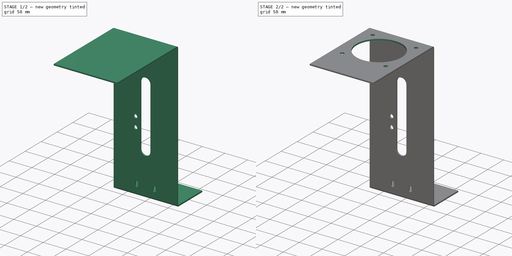
[diagram: build sequence overview — one tinted view per stage of 2, left to right]
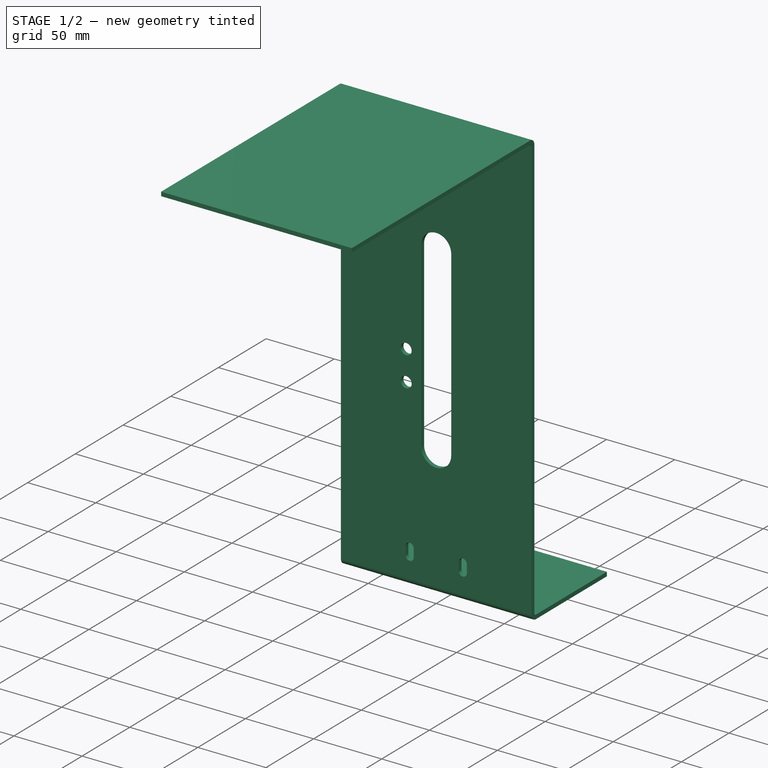
[diagram: stage 1 of 2 — iso view after this stage's code; geometry added in this stage tinted green]
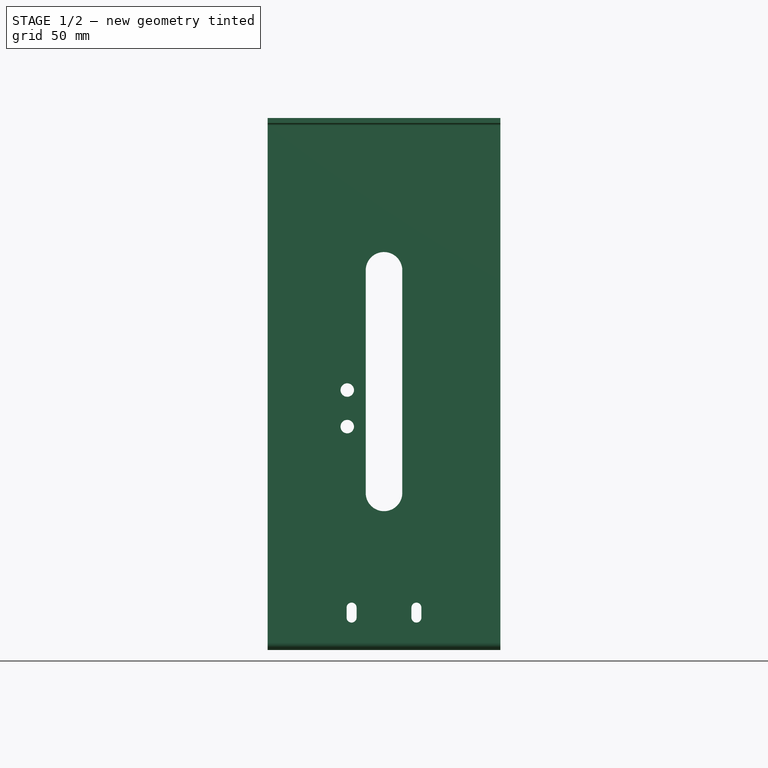
[diagram: stage 1 of 2 — front view after this stage's code; geometry added in this stage tinted green]
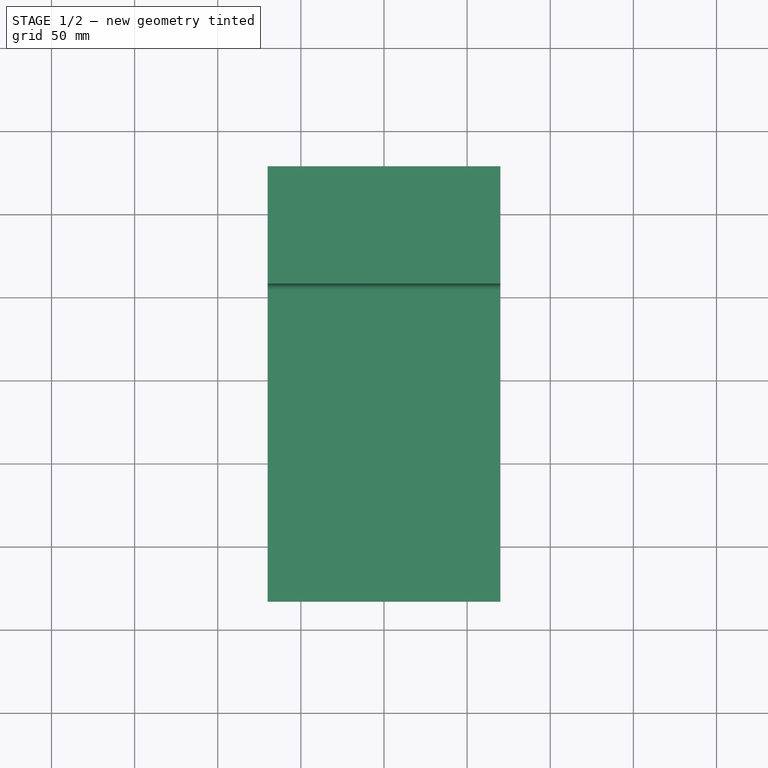
[diagram: stage 1 of 2 — top view after this stage's code; geometry added in this stage tinted green]
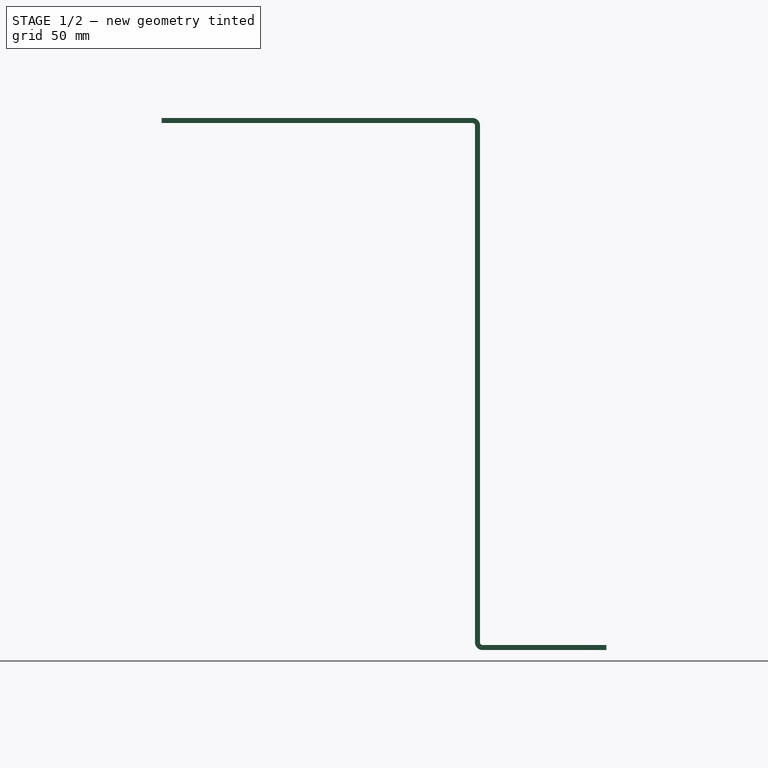
[diagram: stage 1 of 2 — right view after this stage's code; geometry added in this stage tinted green]
FCSTD DOCUMENT  (FreeCAD 0.20R29177 (Git))
Label: Стойка
License: All rights reserved
LicenseURL: http://en.wikipedia.org/wiki/All_rights_reserved
objects: Sketcher::SketchObject×6, PartDesign::Pocket×3, Spreadsheet::Sheet×1, PartDesign::Pad×1, Part::Feature×1, PartDesign::SubShapeBinder×1, PartDesign::Body×1
note: 17 computed .brp shape members not serialized (recipe doc carries the construction recipe); baked Part::Feature solids carry a one-line shape summary decoded from their .brp

FEATURE [Sketcher::SketchObject] Sketch
  FullyConstrained = true
  MapMode = 5
  Placement = pos=(0,0,0) rot=(0.57735,0.57735,0.57735;2.0944rad)
  Support = -> [YZ_Plane]
  expr: Constraints[13] = Spreadsheet.thickness
  sketch-geometry (16):
    g0: LineSegment StartX=-188.5 StartY=317 StartZ=0 EndX=-1.5 EndY=317 EndZ=0
    g1: LineSegment StartX=0 StartY=315.5 StartZ=0 EndX=0 EndY=4.5 EndZ=0
    g2: LineSegment StartX=4.5 StartY=0 StartZ=0 EndX=79 EndY=0 EndZ=0
    g3: LineSegment StartX=-188.5 StartY=317 StartZ=0 EndX=-188.5 EndY=320 EndZ=0
    g4: LineSegment StartX=-188.5 StartY=320 StartZ=0 EndX=-1.5 EndY=320 EndZ=0
    g5: LineSegment StartX=3 StartY=315.5 StartZ=0 EndX=3 EndY=4.5 EndZ=0
    g6: LineSegment StartX=4.5 StartY=3 StartZ=0 EndX=79 EndY=3 EndZ=0
    g7: LineSegment StartX=79 StartY=3 StartZ=0 EndX=79 EndY=0 EndZ=0
    g8: ArcOfCircle CenterX=4.5 CenterY=4.5 CenterZ=0 NormalX=0 NormalY=0 NormalZ=1 AngleXU=0 Radius=1.5 StartAngle=3.14159 EndAngle=4.71239
    g9: GeomPoint X=3 Y=3 Z=0
    g10: ArcOfCircle CenterX=4.5 CenterY=4.5 CenterZ=0 NormalX=0 NormalY=0 NormalZ=1 AngleXU=0 Radius=4.5 StartAngle=3.14159 EndAngle=4.71239
    g11: GeomPoint X=0 Y=0 Z=0
    g12: ArcOfCircle CenterX=-1.5 CenterY=315.5 CenterZ=0 NormalX=0 NormalY=0 NormalZ=1 AngleXU=0 Radius=1.5 StartAngle=5.6e-15 EndAngle=1.5708
    g13: GeomPoint X=0 Y=317 Z=0
    g14: ArcOfCircle CenterX=-1.5 CenterY=315.5 CenterZ=0 NormalX=0 NormalY=0 NormalZ=1 AngleXU=0 Radius=4.5 StartAngle=3.1e-15 EndAngle=1.5708
    g15: GeomPoint X=3 Y=320 Z=0
  constraints (37):
    c: PointOnObject(g13,g-2)
    c: Coincident(g11,g-1)
    c: PointOnObject(g2,g-1)
    c: Horizontal(g0)
    c: Coincident(g3,g0)
    c: Vertical(g3)
    c: Coincident(g4,g3)
    c: Horizontal(g4)
    c: Vertical(g5)
    c: Horizontal(g6)
    c: Coincident(g7,g6)
    c: Coincident(g7,g2)
    c: Vertical(g7)
    c: Distance(g7) = 3
    c: PointOnObject(g9,g6)
    c: PointOnObject(g9,g5)
    c: Tangent(g6,g8) = -1.5708
    c: Tangent(g5,g8) = -1.5708
    c: PointOnObject(g11,g2)
    c: PointOnObject(g11,g1)
    c: Tangent(g2,g10) = -1.5708
    c: Tangent(g1,g10) = -1.5708
    c: PointOnObject(g13,g0)
    c: PointOnObject(g13,g1)
    c: Tangent(g0,g12) = 1.5708
    c: Tangent(g1,g12) = 1.5708
    c: PointOnObject(g15,g4)
    c: PointOnObject(g15,g5)
    c: Tangent(g4,g14) = 1.5708
    c: Tangent(g5,g14) = 1.5708
    c: Equal(g8,g12)
    c: Coincident(g14,g12)
    c: Coincident(g10,g8)
    c: Diameter(g8) = 3
    c: DistanceY(g11,g15) = 320
    c: DistanceX(g11,g2) = 79
    c: Distance(g4) = 187
FEATURE [Spreadsheet::Sheet] Spreadsheet
  cells = B2(thickness)=3
FEATURE [PartDesign::Pad] Pad
  Direction = (1,-2e-16,3e-16)
  Length = 140
  Length2 = 140
  Midplane = true
  Placement = pos=(0,0,0) rot=(0.57735,0.57735,0.57735;2.0944rad)
  Profile = -> Sketch
  ReferenceAxis = -> Sketch [N_Axis]
  Type = 0
FEATURE [Sketcher::SketchObject] Sketch001
  AttachmentOffset = pos=(0,40,0) rot=(0,0,1;0rad)
  FullyConstrained = true
  MapMode = 5
  Placement = pos=(0,40,0) rot=(0,0,1;0rad)
  Support = -> [XY_Plane]
  sketch-geometry (18):
    g0: ArcOfCircle CenterX=19.5 CenterY=19.5 CenterZ=0 NormalX=0 NormalY=0 NormalZ=1 AngleXU=0 Radius=3 StartAngle=3.14159 EndAngle=6.28319
    g1: ArcOfCircle CenterX=19.5 CenterY=25.5 CenterZ=0 NormalX=0 NormalY=0 NormalZ=1 AngleXU=0 Radius=3 StartAngle=-2.7e-15 EndAngle=3.14159
    g2: LineSegment StartX=22.5 StartY=19.5 StartZ=0 EndX=22.5 EndY=25.5 EndZ=0
    g3: LineSegment StartX=16.5 StartY=25.5 StartZ=0 EndX=16.5 EndY=19.5 EndZ=0
    g4: ArcOfCircle CenterX=-19.5 CenterY=-19.5 CenterZ=0 NormalX=0 NormalY=0 NormalZ=1 AngleXU=0 Radius=3 StartAngle=4e-16 EndAngle=3.14159
    g5: ArcOfCircle CenterX=-19.5 CenterY=-25.5 CenterZ=0 NormalX=0 NormalY=0 NormalZ=1 AngleXU=0 Radius=3 StartAngle=3.14159 EndAngle=6.28319
    g6: LineSegment StartX=-22.5 StartY=-19.5 StartZ=0 EndX=-22.5 EndY=-25.5 EndZ=0
    g7: LineSegment StartX=-16.5 StartY=-25.5 StartZ=0 EndX=-16.5 EndY=-19.5 EndZ=0
    g8: ArcOfCircle CenterX=-19.5 CenterY=25.5 CenterZ=0 NormalX=0 NormalY=0 NormalZ=1 AngleXU=0 Radius=3 StartAngle=0 EndAngle=3.14159
    g9: ArcOfCircle CenterX=-19.5 CenterY=19.5 CenterZ=0 NormalX=0 NormalY=0 NormalZ=1 AngleXU=0 Radius=3 StartAngle=3.14159 EndAngle=6.28319
    g10: LineSegment StartX=-22.5 StartY=25.5 StartZ=0 EndX=-22.5 EndY=19.5 EndZ=0
    g11: LineSegment StartX=-16.5 StartY=19.5 StartZ=0 EndX=-16.5 EndY=25.5 EndZ=0
    g12: ArcOfCircle CenterX=19.5 CenterY=-19.5 CenterZ=0 NormalX=0 NormalY=0 NormalZ=1 AngleXU=0 Radius=3 StartAngle=2e-16 EndAngle=3.14159
    g13: ArcOfCircle CenterX=19.5 CenterY=-25.5 CenterZ=0 NormalX=0 NormalY=0 NormalZ=1 AngleXU=0 Radius=3 StartAngle=3.14159 EndAngle=6.28319
    g14: LineSegment StartX=16.5 StartY=-19.5 StartZ=0 EndX=16.5 EndY=-25.5 EndZ=0
    g15: LineSegment StartX=22.5 StartY=-25.5 StartZ=0 EndX=22.5 EndY=-19.5 EndZ=0
    g16: LineSegment StartX=19.5 StartY=25.5 StartZ=0 EndX=19.5 EndY=22.5 EndZ=0
    g17: LineSegment StartX=19.5 StartY=22.5 StartZ=0 EndX=19.5 EndY=19.5 EndZ=0
  constraints (39):
    c: Tangent(g0,g2) = -1.5708
    c: Tangent(g2,g1) = -1.5708
    c: Tangent(g1,g3) = -1.5708
    c: Tangent(g3,g0) = -1.5708
    c: Equal(g0,g1)
    c: Distance(g0,g1) = 6
    c: Diameter(g0) = 6
    c: DistanceX(g1) = 19.5
    c: Tangent(g4,g6) = -1.5708
    c: Tangent(g6,g5) = -1.5708
    c: Tangent(g5,g7) = -1.5708
    c: Tangent(g7,g4) = -1.5708
    c: Equal(g4,g5)
    c: Vertical(g6)
    c: Tangent(g8,g10) = -1.5708
    c: Tangent(g10,g9) = -1.5708
    c: Tangent(g9,g11) = -1.5708
    c: Tangent(g11,g8) = -1.5708
    c: Equal(g8,g9)
    c: Tangent(g12,g14) = -1.5708
    c: Tangent(g14,g13) = -1.5708
    c: Tangent(g13,g15) = -1.5708
    c: Tangent(g15,g12) = -1.5708
    c: Equal(g12,g13)
    c: Symmetric(g1,g5,g-1)
    c: Symmetric(g0,g4,g-1)
    c: Symmetric(g1,g13,g-1)
    c: Symmetric(g1,g8,g-2)
    c: Symmetric(g0,g12,g-1)
    c: Symmetric(g0,g9,g-2)
    c: Equal(g12,g4)
    c: Equal(g4,g8)
    c: Equal(g8,g1)
    c: Coincident(g16,g1)
    c: Vertical(g16)
    c: Coincident(g17,g16)
    c: Coincident(g17,g0)
    c: Equal(g17,g16)
    c: DistanceY(g16) = 22.5
FEATURE [Part::Feature] Part__Feature  label="Shapes"
  shape: bbox 140 x 609.8 x 5 mm, 78 faces (baked)
FEATURE [Sketcher::SketchObject] Sketch002
  AttachmentOffset = pos=(0,-70,0) rot=(0,0,1;0rad)
  FullyConstrained = true
  MapMode = 5
  Placement = pos=(0,-70,0) rot=(0,0,1;0rad)
  Support = -> [XY_Plane]
  sketch-geometry (7):
    g0: Circle CenterX=0 CenterY=0 CenterZ=0 NormalX=0 NormalY=0 NormalZ=1 AngleXU=0 Radius=50
    g1: Circle CenterX=47.73 CenterY=47.73 CenterZ=0 NormalX=0 NormalY=0 NormalZ=1 AngleXU=0 Radius=4
    g2: LineSegment StartX=47.73 StartY=47.73 StartZ=0 EndX=0 EndY=47.73 EndZ=0
    g3: LineSegment StartX=47.73 StartY=47.73 StartZ=0 EndX=47.73 EndY=0 EndZ=0
    g4: Circle CenterX=-47.73 CenterY=-47.73 CenterZ=0 NormalX=0 NormalY=0 NormalZ=1 AngleXU=0 Radius=4
    g5: Circle CenterX=-47.73 CenterY=47.73 CenterZ=0 NormalX=0 NormalY=0 NormalZ=1 AngleXU=0 Radius=4
    g6: Circle CenterX=47.73 CenterY=-47.73 CenterZ=0 NormalX=0 NormalY=0 NormalZ=1 AngleXU=0 Radius=4
  constraints (17):
    c: Coincident(g0,g-1)
    c: Diameter(g0) = 100
    c: Diameter(g1) = 8
    c: DistanceX(g1) = 47.73
    c: Coincident(g2,g1)
    c: PointOnObject(g2,g-2)
    c: Horizontal(g2)
    c: Coincident(g3,g1)
    c: PointOnObject(g3,g-1)
    c: Vertical(g3)
    c: Equal(g3,g2)
    c: Symmetric(g1,g6,g-1)
    c: Symmetric(g1,g5,g-2)
    c: Symmetric(g1,g4,g0)
    c: Equal(g4,g6)
    c: Equal(g6,g5)
    c: Equal(g5,g1)
FEATURE [Sketcher::SketchObject] Sketch003
  FullyConstrained = true
  MapMode = 5
  Support = -> [XY_Plane]
FEATURE [PartDesign::SubShapeBinder] Binder
  BindCopyOnChange = 0
  BindMode = 0
  ClaimChildren = false
  Context = -> Body [Binder.]
  Fuse = false
  MakeFace = true
  OffsetFill = false
  OffsetIntersection = false
  OffsetJoinType = 0
  OffsetOpenResult = false
  PartialLoad = false
  Relative = true
  Support = -> [Part__Feature[Face2]]
  _Version = 2
FEATURE [Sketcher::SketchObject] Sketch004
  AttachmentOffset = pos=(0,0,0) rot=(1,0,0;1.5708rad)
  FullyConstrained = true
  MapMode = 5
  Placement = pos=(0,0,0) rot=(1,0,0;1.5708rad)
  Support = -> [XY_Plane]
  sketch-geometry (24):
    g0: ArcOfCircle CenterX=19.5 CenterY=19.5 CenterZ=0 NormalX=0 NormalY=0 NormalZ=1 AngleXU=0 Radius=3 StartAngle=3.14159 EndAngle=6.28319
    g1: ArcOfCircle CenterX=19.5 CenterY=25.5 CenterZ=0 NormalX=0 NormalY=0 NormalZ=1 AngleXU=0 Radius=3 StartAngle=3e-16 EndAngle=3.14159
    g2: LineSegment StartX=22.5 StartY=19.5 StartZ=0 EndX=22.5 EndY=25.5 EndZ=0
    g3: LineSegment StartX=16.5 StartY=25.5 StartZ=0 EndX=16.5 EndY=19.5 EndZ=0
    g4: ArcOfCircle CenterX=-19.5 CenterY=-19.5 CenterZ=0 NormalX=0 NormalY=0 NormalZ=1 AngleXU=0 Radius=3 StartAngle=0 EndAngle=3.14159
    g5: ArcOfCircle CenterX=-19.5 CenterY=-25.5 CenterZ=0 NormalX=0 NormalY=0 NormalZ=1 AngleXU=0 Radius=3 StartAngle=3.14159 EndAngle=6.28319
    g6: LineSegment StartX=-22.5 StartY=-19.5 StartZ=0 EndX=-22.5 EndY=-25.5 EndZ=0
    g7: LineSegment StartX=-16.5 StartY=-25.5 StartZ=0 EndX=-16.5 EndY=-19.5 EndZ=0
    g8: ArcOfCircle CenterX=-19.5 CenterY=25.5 CenterZ=0 NormalX=0 NormalY=0 NormalZ=1 AngleXU=0 Radius=3 StartAngle=3e-16 EndAngle=3.14159
    g9: ArcOfCircle CenterX=-19.5 CenterY=19.5 CenterZ=0 NormalX=0 NormalY=0 NormalZ=1 AngleXU=0 Radius=3 StartAngle=3.14159 EndAngle=6.28319
    g10: LineSegment StartX=-22.5 StartY=25.5 StartZ=0 EndX=-22.5 EndY=19.5 EndZ=0
    g11: LineSegment StartX=-16.5 StartY=19.5 StartZ=0 EndX=-16.5 EndY=25.5 EndZ=0
    g12: ArcOfCircle CenterX=19.5 CenterY=-19.5 CenterZ=0 NormalX=0 NormalY=0 NormalZ=1 AngleXU=0 Radius=3 StartAngle=0 EndAngle=3.14159
    g13: ArcOfCircle CenterX=19.5 CenterY=-25.5 CenterZ=0 NormalX=0 NormalY=0 NormalZ=1 AngleXU=0 Radius=3 StartAngle=3.14159 EndAngle=6.28319
    g14: LineSegment StartX=16.5 StartY=-19.5 StartZ=0 EndX=16.5 EndY=-25.5 EndZ=0
    g15: LineSegment StartX=22.5 StartY=-25.5 StartZ=0 EndX=22.5 EndY=-19.5 EndZ=0
    g16: LineSegment StartX=19.5 StartY=25.5 StartZ=0 EndX=19.5 EndY=22.5 EndZ=0
    g17: LineSegment StartX=19.5 StartY=22.5 StartZ=0 EndX=19.5 EndY=19.5 EndZ=0
    g18: ArcOfCircle CenterX=5.2257e-12 CenterY=228.37 CenterZ=0 NormalX=0 NormalY=0 NormalZ=1 AngleXU=0 Radius=11 StartAngle=-1.8e-15 EndAngle=3.14159
    g19: ArcOfCircle CenterX=4.9488e-12 CenterY=94.5 CenterZ=0 NormalX=0 NormalY=0 NormalZ=1 AngleXU=0 Radius=11 StartAngle=3.14159 EndAngle=6.28319
    g20: Circle CenterX=-22.1 CenterY=156.37 CenterZ=0 NormalX=0 NormalY=0 NormalZ=1 AngleXU=0 Radius=4.05
    g21: Circle CenterX=-22.1 CenterY=134.37 CenterZ=0 NormalX=0 NormalY=0 NormalZ=1 AngleXU=0 Radius=4.05
    g22: LineSegment StartX=-11 StartY=94.5 StartZ=0 EndX=-11 EndY=228.37 EndZ=0
    g23: LineSegment StartX=11 StartY=228.37 StartZ=0 EndX=11 EndY=94.5 EndZ=0
  constraints (55):
    c: Tangent(g0,g2) = -1.5708
    c: Tangent(g2,g1) = -1.5708
    c: Tangent(g1,g3) = -1.5708
    c: Tangent(g3,g0) = -1.5708
    c: Equal(g0,g1)
    c: Distance(g0,g1) = 6
    c: Diameter(g0) = 6
    c: DistanceX(g1) = 19.5
    c: Tangent(g4,g6) = -1.5708
    c: Tangent(g6,g5) = -1.5708
    c: Tangent(g5,g7) = -1.5708
    c: Tangent(g7,g4) = -1.5708
    c: Equal(g4,g5)
    c: Vertical(g6)
    c: Tangent(g8,g10) = -1.5708
    c: Tangent(g10,g9) = -1.5708
    c: Tangent(g9,g11) = -1.5708
    c: Tangent(g11,g8) = -1.5708
    c: Equal(g8,g9)
    c: Tangent(g12,g14) = -1.5708
    c: Tangent(g14,g13) = -1.5708
    c: Tangent(g13,g15) = -1.5708
    c: Tangent(g15,g12) = -1.5708
    c: Equal(g12,g13)
    c: Symmetric(g1,g5,g-1)
    c: Symmetric(g0,g4,g-1)
    c: Symmetric(g1,g13,g-1)
    c: Symmetric(g1,g8,g-2)
    c: Symmetric(g0,g12,g-1)
    c: Symmetric(g0,g9,g-2)
    c: Equal(g12,g4)
    c: Equal(g4,g8)
    c: Equal(g8,g1)
    c: Coincident(g16,g1)
    c: Vertical(g16)
    c: Coincident(g17,g16)
    c: Coincident(g17,g0)
    c: Equal(g17,g16)
    c: DistanceY(g16) = 22.5
    c: DistanceY(g21) = 134.37
    c: DistanceY(g20) = 156.37
    c: DistanceY(g19) = 94.5
    c: DistanceY(g18) = 228.37
    c: Diameter(g19) = 22
    c: Diameter(g21) = 8.1
    c: Equal(g19,g18)
    c: Equal(g21,g20)
    c: Vertical(g22)
    c: Tangent(g23,g19) = 1.5708
    c: Tangent(g22,g19) = 1.5708
    c: Tangent(g23,g18) = 1.5708
    c: Tangent(g22,g18) = 1.5708
    c: PointOnObject(g18,g-2)
    c: DistanceX(g20) = -22.1
    c: Vertical(g21,g20)
FEATURE [Sketcher::SketchObject] Sketch005
  ExternalGeometry = -> [Binder]
  FullyConstrained = true
  MapMode = 5
  Support = -> [XY_Plane]
  sketch-geometry (2):
    g0: LineSegment StartX=-19.5 StartY=-407.813 StartZ=0 EndX=0 EndY=-427.313 EndZ=0
    g1: LineSegment StartX=-19.5 StartY=-446.813 StartZ=0 EndX=0 EndY=-427.313 EndZ=0
  constraints (6):
    c: Coincident(g0,g-5)
    c: PointOnObject(g0,g-2)
    c: Coincident(g1,g-4)
    c: Coincident(g1,g0)
    c: Equal(g1,g0)
    c: DistanceY(g0,g-1) = 427.313  'offset'
FEATURE [PartDesign::Pocket] Pocket
  BaseFeature = -> Pad
  Direction = (0,1,-2e-16)
  Length = 5
  Length2 = 5
  Placement = pos=(0,0,0) rot=(0.57735,0.57735,0.57735;2.0944rad)
  Profile = -> Sketch004
  ReferenceAxis = -> Sketch004 [N_Axis]
  Type = 1
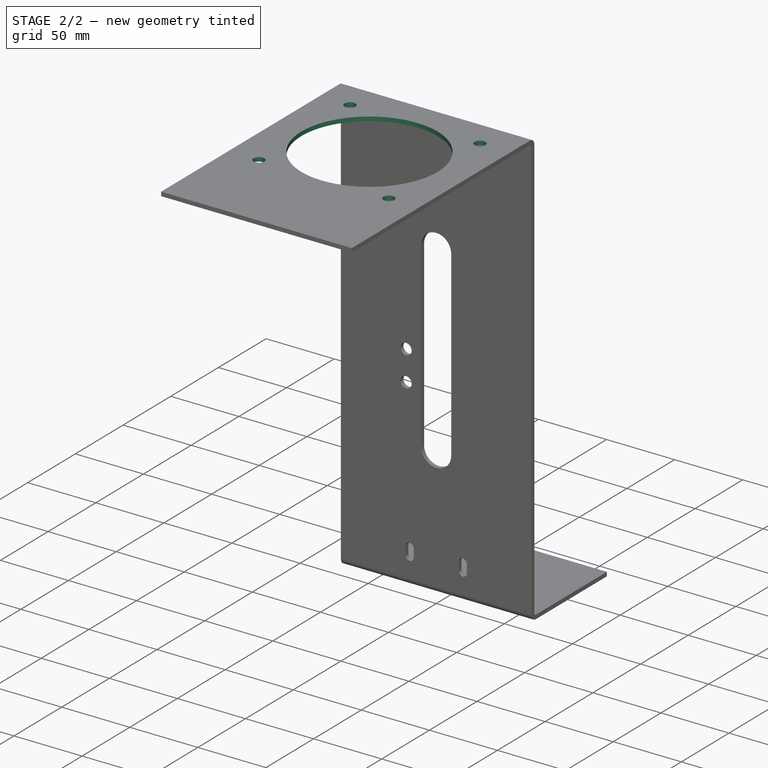
[diagram: stage 2 of 2 — iso view after this stage's code; geometry added in this stage tinted green]
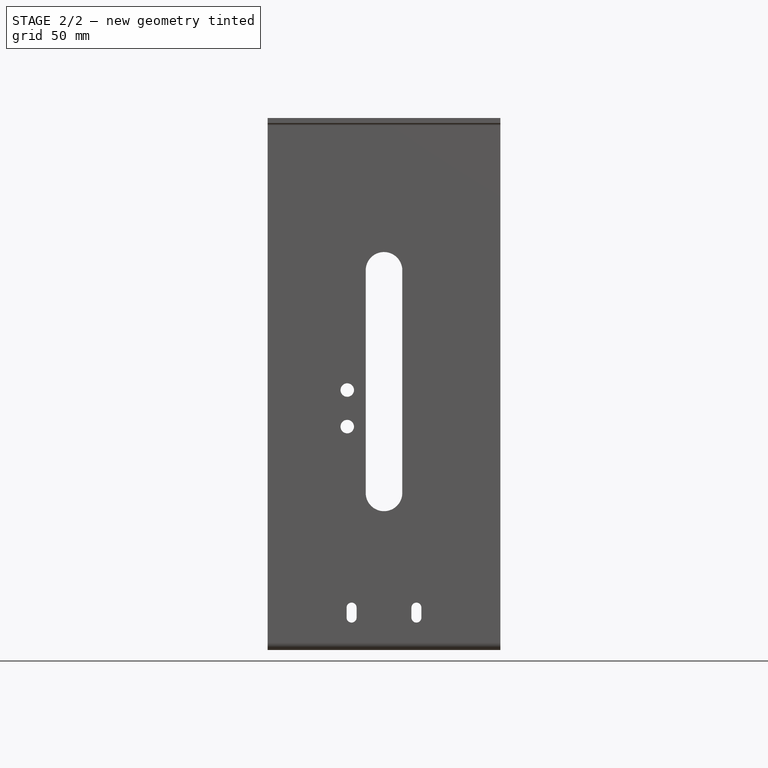
[diagram: stage 2 of 2 — front view after this stage's code; geometry added in this stage tinted green]
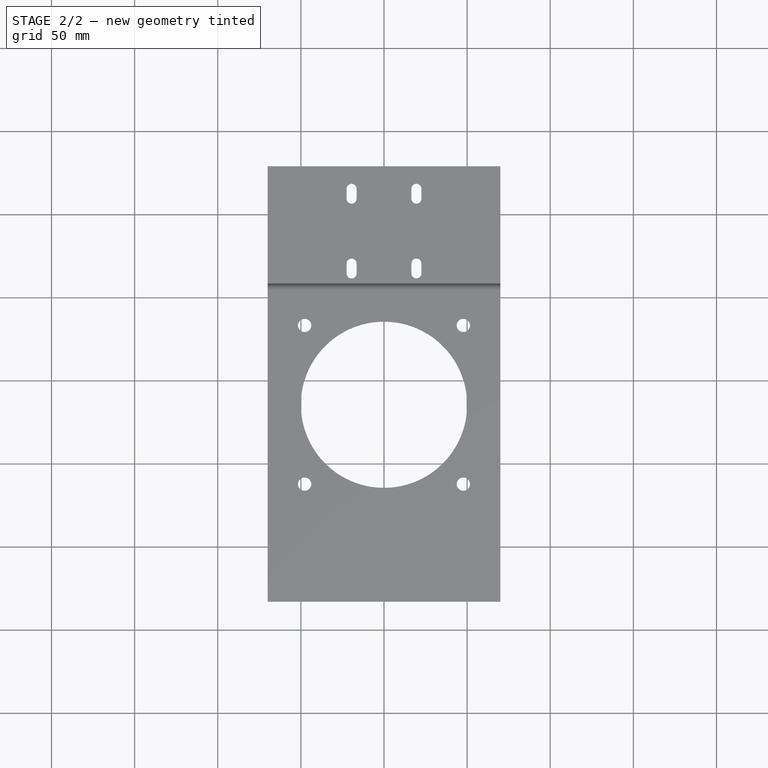
[diagram: stage 2 of 2 — top view after this stage's code; geometry added in this stage tinted green]
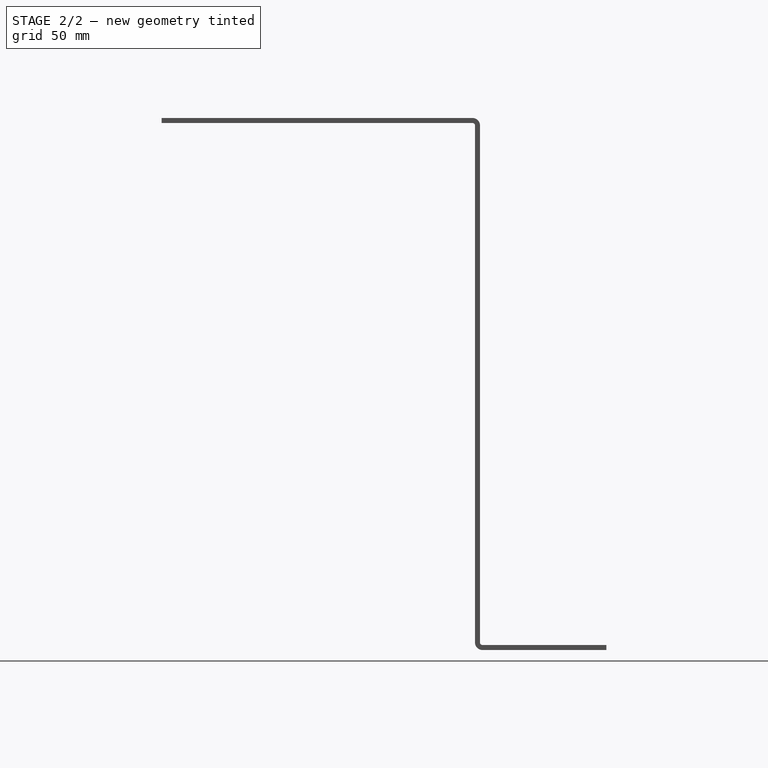
[diagram: stage 2 of 2 — right view after this stage's code; geometry added in this stage tinted green]
FEATURE [PartDesign::Pocket] Pocket001
  BaseFeature = -> Pocket
  Direction = (0,0,-1)
  Length = 5
  Length2 = 5
  Midplane = true
  Placement = pos=(0,0,0) rot=(0.57735,0.57735,0.57735;2.0944rad)
  Profile = -> Sketch001
  ReferenceAxis = -> Sketch001 [N_Axis]
  Type = 1
FEATURE [PartDesign::Pocket] Pocket002
  BaseFeature = -> Pocket001
  Direction = (0,0,-1)
  Length = 5
  Length2 = 5
  Midplane = true
  Placement = pos=(0,0,0) rot=(0.57735,0.57735,0.57735;2.0944rad)
  Profile = -> Sketch002
  ReferenceAxis = -> Sketch002 [N_Axis]
  Type = 1
FEATURE [PartDesign::Body] Body
  Group = -> [Sketch,Pad,Sketch001,Sketch002,Sketch003,Binder,Sketch004,Sketch005,Pocket,Pocket001,Pocket002]
  Origin = -> Origin
  Tip = -> Pocket002
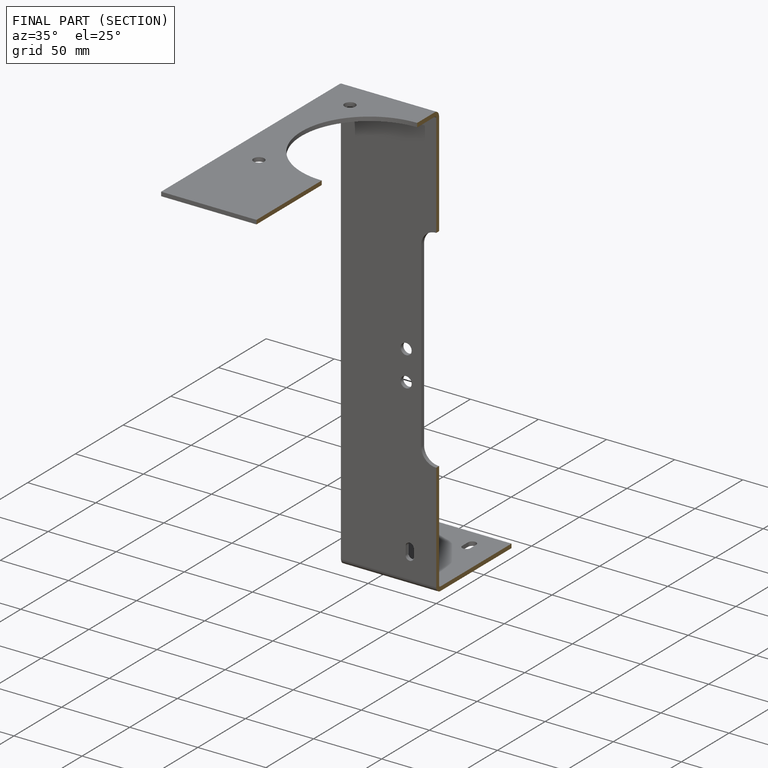
[diagram: finished part — half-section view (interior)]
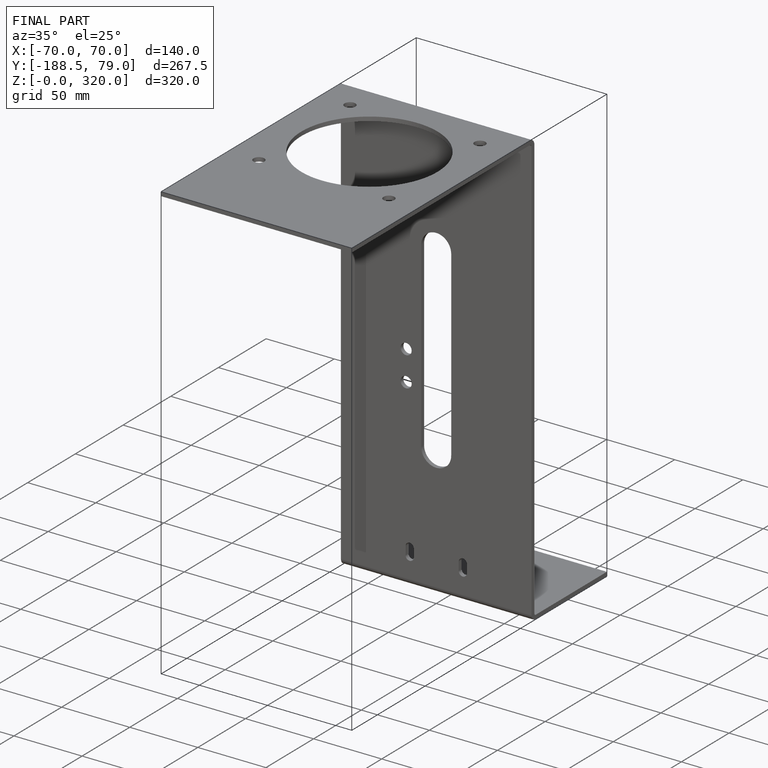
[diagram: finished part — iso view with bounding-box wireframe]
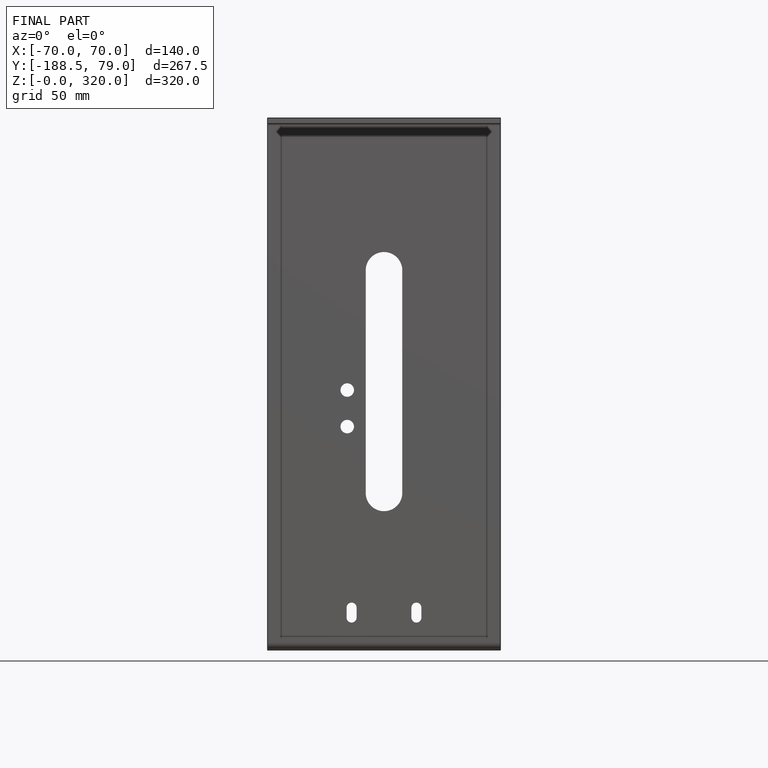
[diagram: finished part — front view with bounding-box wireframe]
